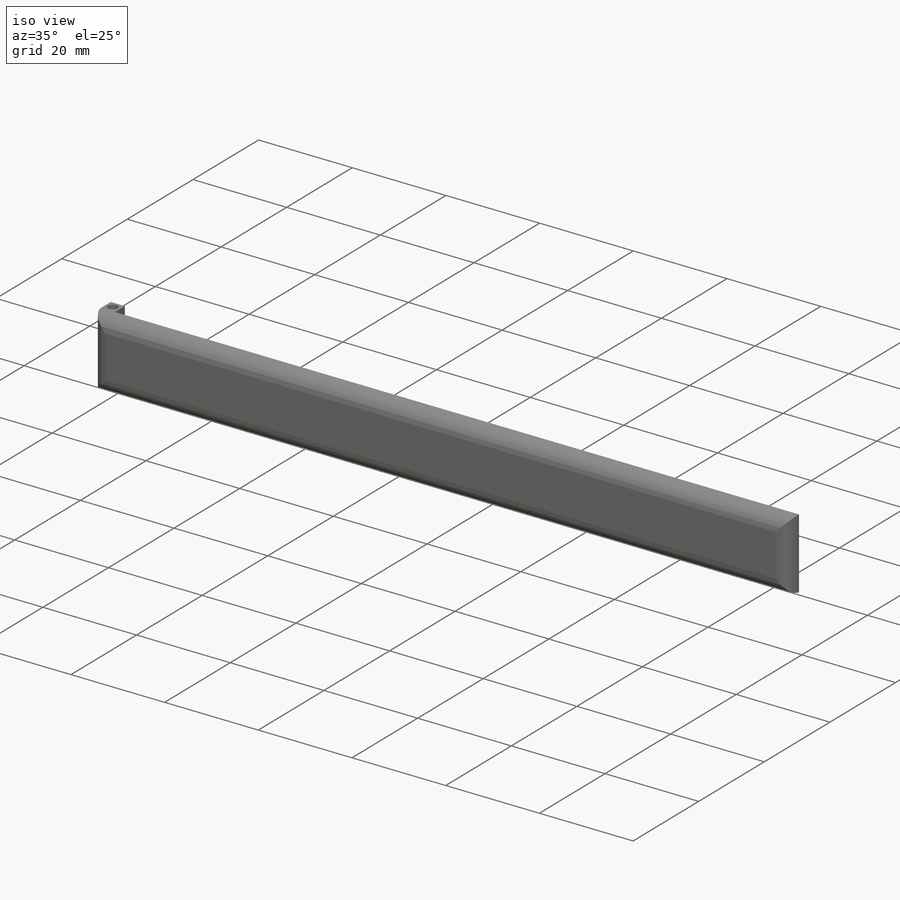
[diagram: iso view]
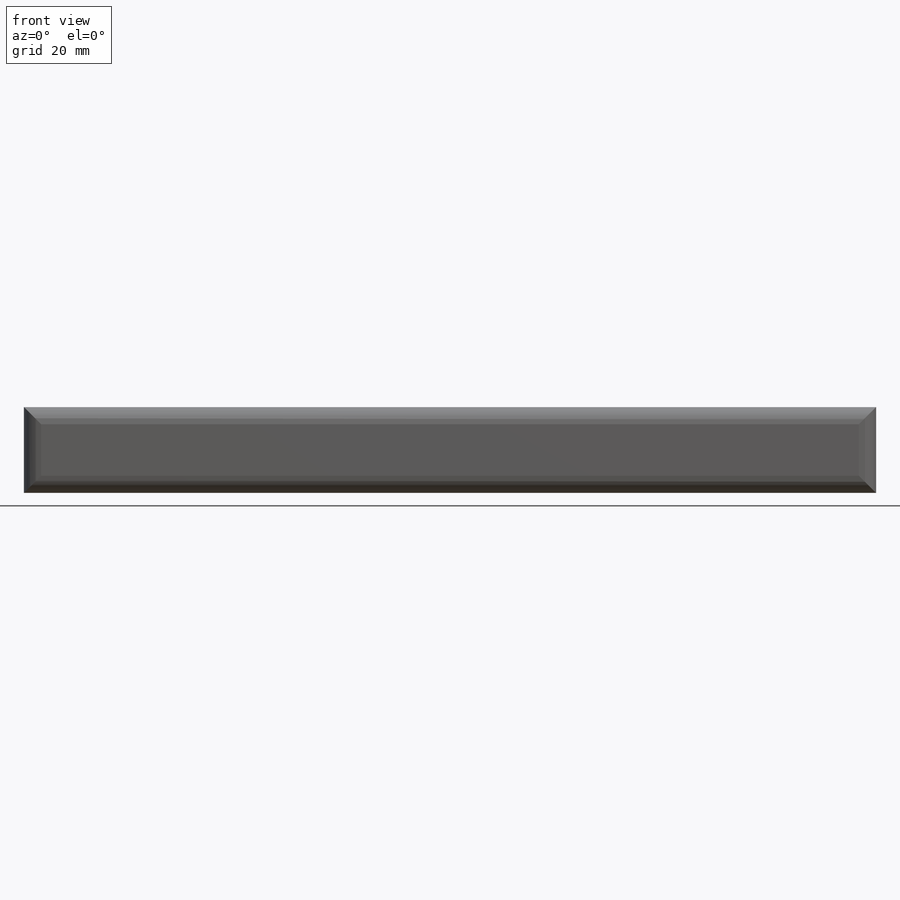
[diagram: front view]
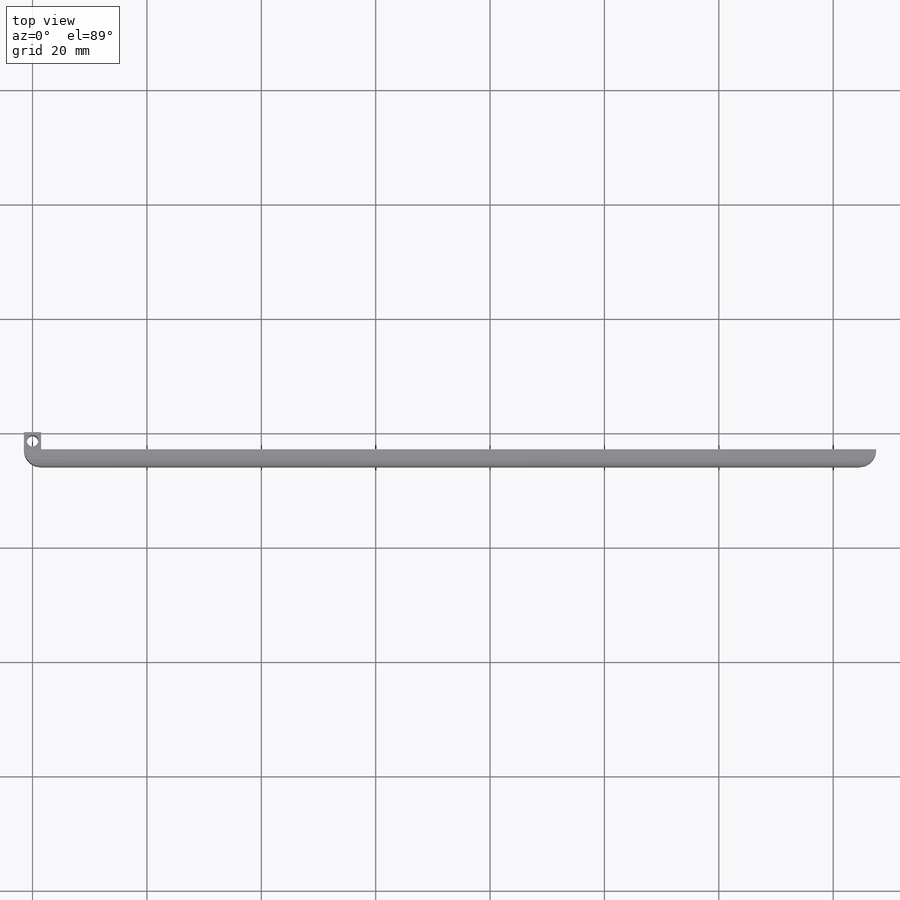
[diagram: top view]
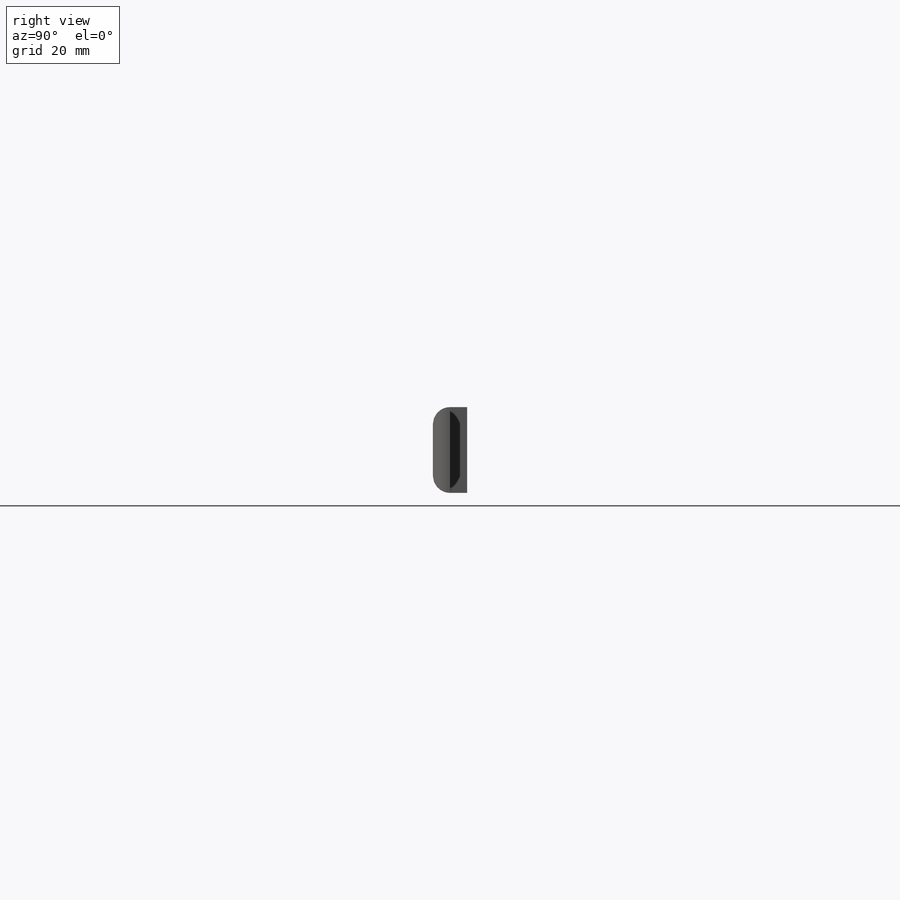
[diagram: right view]
SOLIDWORKS PART (.sldprt)
format: sldprt  version: not decoded by parser v0  size: 155,648 bytes
history: native  units: mm
features: plane x3, sketch x3, extrude x2, material x1, cut_extrude x1, fillet x1 (+13 scaffold rows collapsed)
feature tree (24):
  scaffold x13  (default folders/planes/origin — collapsed)
  material  "聚亚安酯(11671)"
  plane  "前视基准面"
  plane  "上视基准面"
  plane  "右视基准面"
  sketch  "草图1"  dims[D1=3.0mm D2=15.0mm]
  extrude  "凸台-拉伸1"  Depth=6mm
  sketch  "草图2"  dims[D1=3.0mm]
  extrude  "凸台-拉伸2"  Depth=146mm
  sketch  "草图3"  dims[D2=2.0mm D1=1.5mm]
  cut_extrude  "切除-拉伸1"  Depth=146mm
  fillet  "圆角1"  Radius=3mm
decode coverage: 7 of 7 modeling features carry decoded parameters
note: suppression state not decoded; provenance and decode notes live in map.json
